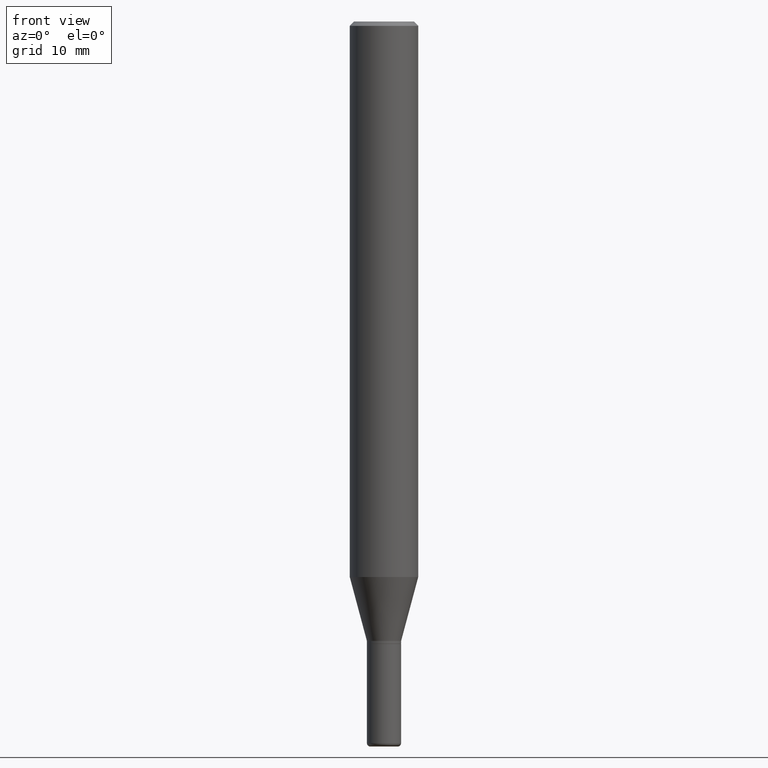
[diagram: clean part render]
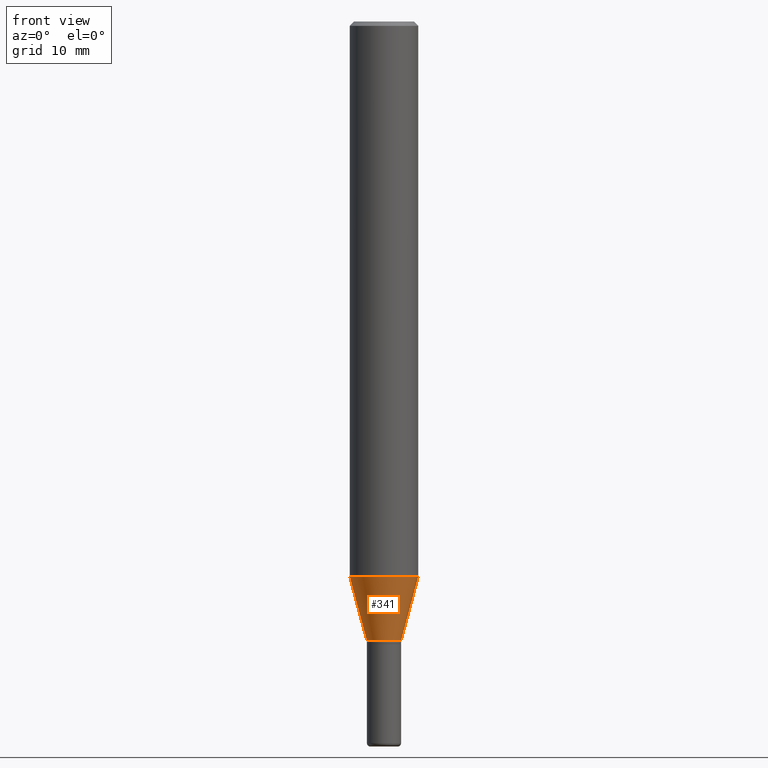
[diagram: same view with one face highlighted and labeled with its STEP entity id]
A machine part, front view. The second image highlights one B-rep face of the part: STEP entity #341.
In plain terms, the highlighted conical surface has half-angle 15 deg.
Its self-contained STEP definition (entity closure, byte-faithful):
#3 = DIRECTION ( 'NONE',  ( 1.000000000000000000, -6.982962677686265133E-15, 0.000000000000000000 ) ) ;
#27 = VECTOR ( 'NONE', #289, 39.37007874015748854 ) ;
#30 = CARTESIAN_POINT ( 'NONE',  ( 0.1180999999999999966, -7.512000309050311391E-15, -1.915322399813057963 ) ) ;
#43 = DIRECTION ( 'NONE',  ( -2.445468806185136597E-29, 3.491481338843145583E-15, 1.000000000000000000 ) ) ;
#52 = CARTESIAN_POINT ( 'NONE',  ( 5.222787729369597184E-29, -7.456756695367306166E-15, -2.135699999999999932 ) ) ;
#55 = DIRECTION ( 'NONE',  ( -0.2588190451025207395, 5.211531920934546309E-15, 0.9659258262890682012 ) ) ;
#75 = AXIS2_PLACEMENT_3D ( 'NONE', #292, #43, #3 ) ;
#83 = CARTESIAN_POINT ( 'NONE',  ( -0.05905000000000002608, -6.442671327891926197E-15, -2.135699999999999932 ) ) ;
#90 = DIRECTION ( 'NONE',  ( -2.445468806185136597E-29, 3.491481338843145583E-15, 1.000000000000000000 ) ) ;
#103 = CARTESIAN_POINT ( 'NONE',  ( 5.222787729369597184E-29, -7.456756695367306166E-15, -2.135699999999999932 ) ) ;
#122 = FACE_OUTER_BOUND ( 'NONE', #165, .T. ) ;
#147 = DIRECTION ( 'NONE',  ( 1.000000000000000000, -6.982962677686269866E-15, 0.000000000000000000 ) ) ;
#165 = EDGE_LOOP ( 'NONE', ( #400, #470, #381, #191 ) ) ;
#191 = ORIENTED_EDGE ( 'NONE', *, *, #348, .F. ) ;
#194 = CIRCLE ( 'NONE', #309, 0.05905000000000002608 ) ;
#198 = EDGE_CURVE ( 'NONE', #358, #319, #284, .T. ) ;
#203 = CONICAL_SURFACE ( 'NONE', #219, 0.05905000000000002608, 0.2617993877991494633 ) ;
#213 = CARTESIAN_POINT ( 'NONE',  ( 0.05905000000000002608, -7.869100641484681875E-15, -2.135699999999999932 ) ) ;
#219 = AXIS2_PLACEMENT_3D ( 'NONE', #52, #90, #304 ) ;
#230 = DIRECTION ( 'NONE',  ( -2.445468806185136597E-29, 3.491481338843145583E-15, 1.000000000000000000 ) ) ;
#284 = LINE ( 'NONE', #439, #27 ) ;
#289 = DIRECTION ( 'NONE',  ( 0.2588190451025207395, 1.565188264969626109E-15, 0.9659258262890682012 ) ) ;
#292 = CARTESIAN_POINT ( 'NONE',  ( 4.683861182530489821E-29, -6.687312416815562340E-15, -1.915322399813057963 ) ) ;
#304 = DIRECTION ( 'NONE',  ( 1.000000000000000000, -6.982962677686269866E-15, 0.000000000000000000 ) ) ;
#309 = AXIS2_PLACEMENT_3D ( 'NONE', #103, #230, #147 ) ;
#318 = CARTESIAN_POINT ( 'NONE',  ( -0.1180999999999999966, -5.848161445882884932E-15, -1.915322399813057963 ) ) ;
#319 = VERTEX_POINT ( 'NONE', #30 ) ;
#327 = VERTEX_POINT ( 'NONE', #318 ) ;
#341 = ADVANCED_FACE ( 'NONE', ( #122 ), #203, .T. ) ;
#348 = EDGE_CURVE ( 'NONE', #327, #319, #510, .T. ) ;
#358 = VERTEX_POINT ( 'NONE', #213 ) ;
#381 = ORIENTED_EDGE ( 'NONE', *, *, #198, .T. ) ;
#394 = VERTEX_POINT ( 'NONE', #83 ) ;
#400 = ORIENTED_EDGE ( 'NONE', *, *, #499, .F. ) ;
#412 = LINE ( 'NONE', #482, #495 ) ;
#439 = CARTESIAN_POINT ( 'NONE',  ( 0.05905000000000002608, -7.869100641484681875E-15, -2.135699999999999932 ) ) ;
#470 = ORIENTED_EDGE ( 'NONE', *, *, #516, .T. ) ;
#482 = CARTESIAN_POINT ( 'NONE',  ( -0.05905000000000002608, -7.037181209900967462E-15, -2.135699999999999932 ) ) ;
#495 = VECTOR ( 'NONE', #55, 39.37007874015748854 ) ;
#499 = EDGE_CURVE ( 'NONE', #394, #327, #412, .T. ) ;
#510 = CIRCLE ( 'NONE', #75, 0.1180999999999999966 ) ;
#516 = EDGE_CURVE ( 'NONE', #394, #358, #194, .T. ) ;